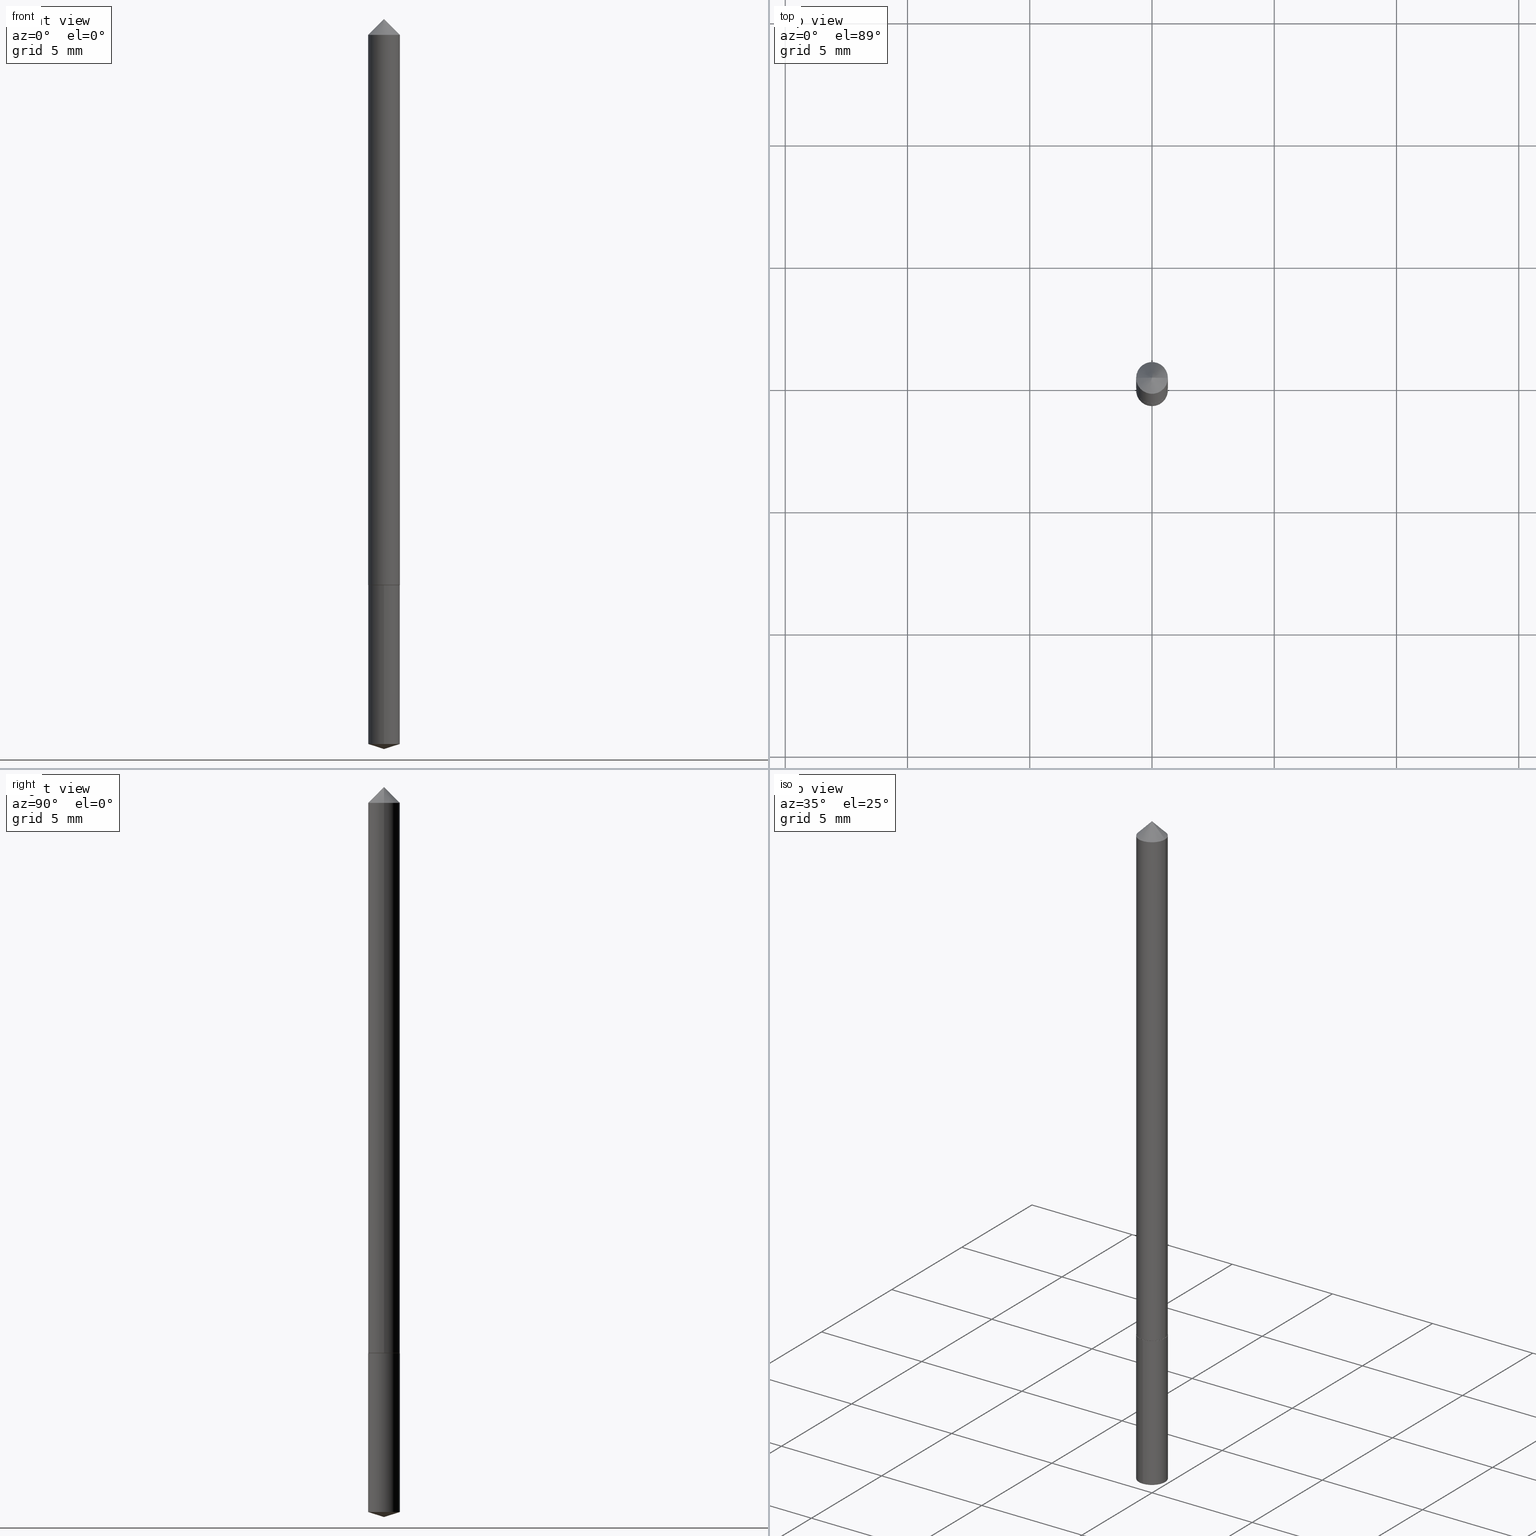
[diagram: canonical four-view strip — front | top / right | iso, engineering-drawing reading convention]
A machine part, canonical four-view strip (front | top / right | iso — engineering-drawing reading convention). The complete STEP part file that produces these views, byte-faithful:
ISO-10303-21;
HEADER;
FILE_DESCRIPTION (( 'STEP AP203' ),
    '1' );
FILE_NAME ('68659.STEP',
    '2024-04-23T13:26:30',
    ( '' ),
    ( '' ),
    'SwSTEP 2.0',
    'SolidWorks 2023',
    '' );
FILE_SCHEMA (( 'CONFIG_CONTROL_DESIGN' ));
ENDSEC;

DATA;
#1 = FACE_OUTER_BOUND ( 'NONE', #134, .T. ) ;
#2 = CARTESIAN_POINT ( 'NONE',  ( -0.02560000000000000817, 6.965505270991948383E-17, -0.03125000000000020123 ) ) ;
#3 = ORIENTED_EDGE ( 'NONE', *, *, #307, .T. ) ;
#4 = CARTESIAN_POINT ( 'NONE',  ( 0.02560000000000000817, -2.878726363876175249E-16, -0.03125000000000020123 ) ) ;
#5 = CARTESIAN_POINT ( 'NONE',  ( 2.243228535913626021E-29, -3.202735832120817848E-15, -0.9173000000000001153 ) ) ;
#6 = CARTESIAN_POINT ( 'NONE',  ( 2.243228535913626021E-29, -3.202735832120817848E-15, -0.9173000000000001153 ) ) ;
#7 = CONICAL_SURFACE ( 'NONE', #126, 0.02560000000000011572, 0.7853981633974995713 ) ;
#8 = APPROVAL_DATE_TIME ( #256, #63 ) ;
#9 = LOCAL_TIME ( 9, 26, 30.00000000000000000, #293 ) ;
#10 = CC_DESIGN_PERSON_AND_ORGANIZATION_ASSIGNMENT ( #231, #260, ( #140 ) ) ;
#11 = FACE_OUTER_BOUND ( 'NONE', #319, .T. ) ;
#12 = ORIENTED_EDGE ( 'NONE', *, *, #98, .F. ) ;
#13 = LENGTH_MEASURE_WITH_UNIT ( LENGTH_MEASURE( 0.02539999999999999897 ), #203 );
#14 = CYLINDRICAL_SURFACE ( 'NONE', #213, 0.02560000000000006368 ) ;
#15 = PERSON_AND_ORGANIZATION ( #261, #219 ) ;
#16 = EDGE_LOOP ( 'NONE', ( #30, #255, #44, #353 ) ) ;
#17 = UNCERTAINTY_MEASURE_WITH_UNIT (LENGTH_MEASURE( 1.000000000000000082E-05 ), #97, 'distance_accuracy_value', 'NONE');
#18 = EDGE_CURVE ( 'NONE', #222, #23, #73, .T. ) ;
#19 = DIRECTION ( 'NONE',  ( 0.7071067811865452413, -7.319954787623248157E-15, -0.7071067811865497932 ) ) ;
#20 = EDGE_LOOP ( 'NONE', ( #128, #200, #359, #92 ) ) ;
#21 = CARTESIAN_POINT ( 'NONE',  ( 0.02560000000000011572, -3.379753936000165015E-15, -0.9168000000000000593 ) ) ;
#22 = CARTESIAN_POINT ( 'NONE',  ( 1.818989403546143265E-16, 0.02559999999999589687, -1.173028351004698377 ) ) ;
#23 = VERTEX_POINT ( 'NONE', #22 ) ;
#24 = CARTESIAN_POINT ( 'NONE',  ( 2.888188100936074852E-29, -4.124010729998168659E-15, -1.181100000000000039 ) ) ;
#25 = CIRCLE ( 'NONE', #179, 0.02560000000000000470 ) ;
#26 = LOCAL_TIME ( 9, 26, 30.00000000000000000, #37 ) ;
#27 = VECTOR ( 'NONE', #122, 39.37007874015748143 ) ;
#28 = DIRECTION ( 'NONE',  ( -0.7071067811865837660, 7.493145998870485111E-15, 0.7071067811865112684 ) ) ;
#29 = CARTESIAN_POINT ( 'NONE',  ( 5.729040271856188653E-29, 1.789144973831807056E-15, -0.9173000000000001153 ) ) ;
#30 = ORIENTED_EDGE ( 'NONE', *, *, #163, .F. ) ;
#31 = CARTESIAN_POINT ( 'NONE',  ( 7.642090019328601786E-31, -1.091087918388490144E-16, -0.03125000000000020123 ) ) ;
#32 = PRODUCT_RELATED_PRODUCT_CATEGORY ( 'detail', '', ( #328 ) ) ;
#33 = CYLINDRICAL_SURFACE ( 'NONE', #228, 0.02560000000000000470 ) ;
#34 = EDGE_LOOP ( 'NONE', ( #106, #107, #279, #12 ) ) ;
#35 = DIRECTION ( 'NONE',  ( -2.445468806185136877E-29, 3.491481338843145188E-15, 1.000000000000000000 ) ) ;
#36 = EDGE_CURVE ( 'NONE', #129, #93, #206, .T. ) ;
#37 = COORDINATED_UNIVERSAL_TIME_OFFSET ( 5, 0, .BEHIND. ) ;
#38 = CIRCLE ( 'NONE', #362, 0.02560000000000000817 ) ;
#39 = DIRECTION ( 'NONE',  ( 6.982962677686265922E-15, 1.000000000000000000, -3.491669401403918700E-15 ) ) ;
#40 = VERTEX_POINT ( 'NONE', #21 ) ;
#41 = EDGE_CURVE ( 'NONE', #93, #258, #38, .T. ) ;
#42 = AXIS2_PLACEMENT_3D ( 'NONE', #306, #164, #190 ) ;
#43 = CARTESIAN_POINT ( 'NONE',  ( 0.000000000000000000, 0.000000000000000000, 0.000000000000000000 ) ) ;
#44 = ORIENTED_EDGE ( 'NONE', *, *, #49, .T. ) ;
#45 = SHAPE_DEFINITION_REPRESENTATION ( #194, #165 ) ;
#46 = DIRECTION ( 'NONE',  ( 1.000000000000000000, -6.982962677686276177E-15, 0.000000000000000000 ) ) ;
#47 = EDGE_LOOP ( 'NONE', ( #64, #104, #87, #77 ) ) ;
#48 = CARTESIAN_POINT ( 'NONE',  ( 0.02560000000000000817, -2.847375405818002682E-16, -0.03125000000000020123 ) ) ;
#49 = EDGE_CURVE ( 'NONE', #298, #40, #268, .T. ) ;
#50 = CARTESIAN_POINT ( 'NONE',  ( 7.642090019328601786E-31, -1.091087918388490144E-16, -0.03125000000000020123 ) ) ;
#51 = CC_DESIGN_PERSON_AND_ORGANIZATION_ASSIGNMENT ( #321, #295, ( #156 ) ) ;
#52 = DIRECTION ( 'NONE',  ( -2.445337482800842001E-29, 3.491669401403918305E-15, 1.000000000000000000 ) ) ;
#53 = CARTESIAN_POINT ( 'NONE',  ( 2.242005801510533500E-29, -3.200990091451395950E-15, -0.9168000000000000593 ) ) ;
#54 = CIRCLE ( 'NONE', #119, 0.02510000000000016385 ) ;
#55 = CARTESIAN_POINT ( 'NONE',  ( 2.242005801510533500E-29, -3.200990091451395950E-15, -0.9168000000000000593 ) ) ;
#56 = DIRECTION ( 'NONE',  ( -6.982962677686265133E-15, -1.000000000000000000, 5.335640612625512847E-15 ) ) ;
#57 = DIRECTION ( 'NONE',  ( 1.000000000000000000, -6.982962677686266711E-15, 4.876176775795935232E-29 ) ) ;
#58 = CONICAL_SURFACE ( 'NONE', #197, 124.8659371009161418, 1.265363707695894124 ) ;
#59 = CARTESIAN_POINT ( 'NONE',  ( 0.000000000000000000, 0.000000000000000000, 0.000000000000000000 ) ) ;
#60 = VERTEX_POINT ( 'NONE', #350 ) ;
#61 = APPROVAL_STATUS ( 'not_yet_approved' ) ;
#62 = CARTESIAN_POINT ( 'NONE',  ( 2.243228535913626021E-29, -3.202735832120817848E-15, -0.9173000000000001153 ) ) ;
#63 = APPROVAL ( #61, 'UNSPECIFIED' ) ;
#64 = ORIENTED_EDGE ( 'NONE', *, *, #285, .T. ) ;
#65 = ORIENTED_EDGE ( 'NONE', *, *, #307, .F. ) ;
#66 = EDGE_CURVE ( 'NONE', #108, #60, #102, .T. ) ;
#67 = CC_DESIGN_SECURITY_CLASSIFICATION ( #156, ( #227 ) ) ;
#68 = DIRECTION ( 'NONE',  ( -2.445337482800842001E-29, 3.491669401403918305E-15, 1.000000000000000000 ) ) ;
#69 = CIRCLE ( 'NONE', #239, 0.02560000000000011572 ) ;
#70 = COORDINATED_UNIVERSAL_TIME_OFFSET ( 5, 0, .BEHIND. ) ;
#71 = ADVANCED_FACE ( 'NONE', ( #132 ), #14, .T. ) ;
#72 = CARTESIAN_POINT ( 'NONE',  ( -1.787638445487459910E-16, -0.02560000000000320353, -0.9172999999999998932 ) ) ;
#73 = LINE ( 'NONE', #238, #303 ) ;
#74 = EDGE_LOOP ( 'NONE', ( #316, #3, #124 ) ) ;
#75 = DATE_TIME_ROLE ( 'classification_date' ) ;
#76 = DIRECTION ( 'NONE',  ( 6.776566513254262871E-15, 0.9537169507482294861, 0.3007057995042648479 ) ) ;
#77 = ORIENTED_EDGE ( 'NONE', *, *, #66, .F. ) ;
#78 = CC_DESIGN_DATE_AND_TIME_ASSIGNMENT ( #202, #173, ( #140 ) ) ;
#79 = CARTESIAN_POINT ( 'NONE',  ( 2.868570658040264674E-29, -4.095654690395403261E-15, -1.173028351004698155 ) ) ;
#80 = DIRECTION ( 'NONE',  ( 1.000000000000000000, -6.982962677686270655E-15, 0.000000000000000000 ) ) ;
#81 = ADVANCED_FACE ( 'NONE', ( #289 ), #58, .T. ) ;
#82 = CARTESIAN_POINT ( 'NONE',  ( 2.888188100936074852E-29, -4.124010729998168659E-15, -1.181100000000000039 ) ) ;
#83 = CIRCLE ( 'NONE', #308, 0.02560000000000011572 ) ;
#84 = DIRECTION ( 'NONE',  ( -2.445468806185136597E-29, 3.491481338843145583E-15, 1.000000000000000000 ) ) ;
#85 = EDGE_CURVE ( 'NONE', #254, #258, #152, .T. ) ;
#86 = ORIENTED_EDGE ( 'NONE', *, *, #201, .T. ) ;
#87 = ORIENTED_EDGE ( 'NONE', *, *, #325, .F. ) ;
#88 = DIRECTION ( 'NONE',  ( -2.445468806185136597E-29, 3.491481338843145583E-15, 1.000000000000000000 ) ) ;
#89 = AXIS2_PLACEMENT_3D ( 'NONE', #265, #153, #348 ) ;
#90 = CONICAL_SURFACE ( 'NONE', #257, 0.02560000000000000817, 0.7853981633974450594 ) ;
#91 = MECHANICAL_CONTEXT ( 'NONE', #154, 'mechanical' ) ;
#92 = ORIENTED_EDGE ( 'NONE', *, *, #338, .F. ) ;
#93 = VERTEX_POINT ( 'NONE', #296 ) ;
#94 = EDGE_LOOP ( 'NONE', ( #65, #310, #221 ) ) ;
#95 = DIRECTION ( 'NONE',  ( 2.445337482800841440E-29, -3.491669401403918700E-15, -1.000000000000000000 ) ) ;
#96 = CC_DESIGN_APPROVAL ( #245, ( #227 ) ) ;
#97 =( CONVERSION_BASED_UNIT ( 'INCH', #13 ) LENGTH_UNIT ( ) NAMED_UNIT ( #250 ) );
#98 = EDGE_CURVE ( 'NONE', #184, #60, #25, .T. ) ;
#99 = FACE_OUTER_BOUND ( 'NONE', #146, .T. ) ;
#100 = CALENDAR_DATE ( 2024, 23, 4 ) ;
#101 = CONICAL_SURFACE ( 'NONE', #309, 0.02560000000000011572, 0.7853981633974995713 ) ;
#102 = LINE ( 'NONE', #72, #27 ) ;
#103 = APPROVAL_STATUS ( 'not_yet_approved' ) ;
#104 = ORIENTED_EDGE ( 'NONE', *, *, #332, .T. ) ;
#105 = DIRECTION ( 'NONE',  ( -2.445468806185136597E-29, 3.491481338843145583E-15, 1.000000000000000000 ) ) ;
#106 = ORIENTED_EDGE ( 'NONE', *, *, #332, .F. ) ;
#107 = ORIENTED_EDGE ( 'NONE', *, *, #167, .T. ) ;
#108 = VERTEX_POINT ( 'NONE', #236 ) ;
#109 = CC_DESIGN_APPROVAL ( #63, ( #140 ) ) ;
#110 = DIRECTION ( 'NONE',  ( -2.445337482800842001E-29, 3.491669401403918305E-15, 1.000000000000000000 ) ) ;
#111 = CARTESIAN_POINT ( 'NONE',  ( 2.242005801510533500E-29, -3.200990091451395950E-15, -0.9168000000000000593 ) ) ;
#112 = CC_DESIGN_PERSON_AND_ORGANIZATION_ASSIGNMENT ( #242, #270, ( #227 ) ) ;
#113 = CARTESIAN_POINT ( 'NONE',  ( 2.242005801510533500E-29, -3.200990091451395950E-15, -0.9168000000000000593 ) ) ;
#114 = ORIENTED_EDGE ( 'NONE', *, *, #224, .F. ) ;
#115 = FACE_OUTER_BOUND ( 'NONE', #20, .T. ) ;
#116 = FACE_OUTER_BOUND ( 'NONE', #74, .T. ) ;
#117 = CC_DESIGN_PERSON_AND_ORGANIZATION_ASSIGNMENT ( #125, #237, ( #227 ) ) ;
#118 = DIRECTION ( 'NONE',  ( -2.445337482800842001E-29, 3.491669401403918700E-15, 1.000000000000000000 ) ) ;
#119 = AXIS2_PLACEMENT_3D ( 'NONE', #356, #105, #46 ) ;
#120 = COORDINATED_UNIVERSAL_TIME_OFFSET ( 5, 0, .BEHIND. ) ;
#121 = EDGE_CURVE ( 'NONE', #258, #93, #263, .T. ) ;
#122 = DIRECTION ( 'NONE',  ( -2.445337482800842001E-29, 3.491669401403918700E-15, 1.000000000000000000 ) ) ;
#123 = APPROVAL ( #103, 'UNSPECIFIED' ) ;
#124 = ORIENTED_EDGE ( 'NONE', *, *, #167, .F. ) ;
#125 = PERSON_AND_ORGANIZATION ( #261, #219 ) ;
#126 = AXIS2_PLACEMENT_3D ( 'NONE', #53, #274, #248 ) ;
#127 = APPROVAL_PERSON_ORGANIZATION ( #150, #63, #314 ) ;
#128 = ORIENTED_EDGE ( 'NONE', *, *, #208, .T. ) ;
#129 = VERTEX_POINT ( 'NONE', #243 ) ;
#130 = CLOSED_SHELL ( 'NONE', ( #158, #269, #313, #317, #232, #71, #225 ) ) ;
#131 = APPROVAL_DATE_TIME ( #352, #245 ) ;
#132 = FACE_OUTER_BOUND ( 'NONE', #212, .T. ) ;
#133 = DIRECTION ( 'NONE',  ( 0.7071067811865837660, -2.468850131082636503E-15, 0.7071067811865112684 ) ) ;
#134 = EDGE_LOOP ( 'NONE', ( #114, #214 ) ) ;
#135 = DIRECTION ( 'NONE',  ( -6.659769872151637611E-15, -0.9537169507482274877, 0.3007057995042715093 ) ) ;
#136 = CC_DESIGN_APPROVAL ( #123, ( #156 ) ) ;
#137 = EDGE_CURVE ( 'NONE', #358, #298, #54, .T. ) ;
#138 = AXIS2_PLACEMENT_3D ( 'NONE', #337, #334, #168 ) ;
#139 = DIRECTION ( 'NONE',  ( -2.445468806185136597E-29, 3.491481338843145583E-15, 1.000000000000000000 ) ) ;
#140 = PRODUCT_DEFINITION ( 'UNKNOWN', '', #227, #235 ) ;
#141 = DIRECTION ( 'NONE',  ( -2.438088387897960049E-29, 3.491481338843145188E-15, 1.000000000000000000 ) ) ;
#142 = ORIENTED_EDGE ( 'NONE', *, *, #121, .T. ) ;
#143 = FACE_OUTER_BOUND ( 'NONE', #16, .T. ) ;
#144 = APPROVAL_PERSON_ORGANIZATION ( #344, #245, #326 ) ;
#145 = CARTESIAN_POINT ( 'NONE',  ( 1.818989403546144004E-16, 0.02559999999999680240, -0.9173000000000002263 ) ) ;
#146 = EDGE_LOOP ( 'NONE', ( #211, #299, #142 ) ) ;
#147 = LOCAL_TIME ( 9, 26, 30.00000000000000000, #70 ) ;
#148 = VECTOR ( 'NONE', #271, 39.37007874015748143 ) ;
#149 = DIRECTION ( 'NONE',  ( 0.000000000000000000, 0.000000000000000000, 1.000000000000000000 ) ) ;
#150 = PERSON_AND_ORGANIZATION ( #261, #219 ) ;
#151 = VECTOR ( 'NONE', #133, 39.37007874015748143 ) ;
#152 = LINE ( 'NONE', #48, #247 ) ;
#153 = DIRECTION ( 'NONE',  ( -2.445468806185136597E-29, 3.491481338843145583E-15, 1.000000000000000000 ) ) ;
#154 = APPLICATION_CONTEXT ( 'configuration controlled 3d designs of mechanical parts and assemblies' ) ;
#155 = CARTESIAN_POINT ( 'NONE',  ( -0.02560000000000006368, 1.818989403545861000E-16, -1.259247383105259117E-30 ) ) ;
#156 = SECURITY_CLASSIFICATION ( '', '', #349 ) ;
#157 = CARTESIAN_POINT ( 'NONE',  ( 2.243228535913626021E-29, -3.202735832120817848E-15, -0.9173000000000001153 ) ) ;
#158 = ADVANCED_FACE ( 'NONE', ( #99 ), #264, .T. ) ;
#159 = EDGE_LOOP ( 'NONE', ( #176, #343, #229 ) ) ;
#160 = ADVANCED_FACE ( 'NONE', ( #333 ), #33, .T. ) ;
#161 = CARTESIAN_POINT ( 'NONE',  ( 0.02510000000000016385, -3.378008195330743906E-15, -0.9172999999999998932 ) ) ;
#162 = DIRECTION ( 'NONE',  ( -6.982962677686265133E-15, -1.000000000000000000, 5.335640612625512847E-15 ) ) ;
#163 = EDGE_CURVE ( 'NONE', #358, #129, #249, .T. ) ;
#164 = DIRECTION ( 'NONE',  ( -2.445337482800842001E-29, 3.491669401403918305E-15, 1.000000000000000000 ) ) ;
#165 = ADVANCED_BREP_SHAPE_REPRESENTATION ( '68659', ( #345, #220, #174 ), #215 ) ;
#166 = DIRECTION ( 'NONE',  ( -0.7071067811865452413, 2.468850131082233000E-15, -0.7071067811865497932 ) ) ;
#167 = EDGE_CURVE ( 'NONE', #23, #108, #340, .T. ) ;
#168 = DIRECTION ( 'NONE',  ( -6.982962677686265133E-15, -1.000000000000000000, 5.335640612625512847E-15 ) ) ;
#169 = AXIS2_PLACEMENT_3D ( 'NONE', #50, #241, #267 ) ;
#170 = AXIS2_PLACEMENT_3D ( 'NONE', #62, #95, #39 ) ;
#171 = LINE ( 'NONE', #315, #275 ) ;
#172 = APPLICATION_PROTOCOL_DEFINITION ( 'international standard', 'config_control_design', 1994, #282 ) ;
#173 = DATE_TIME_ROLE ( 'creation_date' ) ;
#174 = AXIS2_PLACEMENT_3D ( 'NONE', #59, #149, #280 ) ;
#175 = CARTESIAN_POINT ( 'NONE',  ( -0.02510000000000016385, -3.021740378270919843E-15, -0.9172999999999998932 ) ) ;
#176 = ORIENTED_EDGE ( 'NONE', *, *, #85, .F. ) ;
#177 = CC_DESIGN_PERSON_AND_ORGANIZATION_ASSIGNMENT ( #281, #311, ( #328 ) ) ;
#178 = CARTESIAN_POINT ( 'NONE',  ( 7.642090019328601786E-31, -1.091087918388490144E-16, -0.03125000000000020123 ) ) ;
#179 = AXIS2_PLACEMENT_3D ( 'NONE', #157, #68, #180 ) ;
#180 = DIRECTION ( 'NONE',  ( -6.982962677686265133E-15, -1.000000000000000000, 5.335640612625512847E-15 ) ) ;
#181 = APPROVAL_DATE_TIME ( #186, #123 ) ;
#182 = DIRECTION ( 'NONE',  ( -6.982962677686265922E-15, -1.000000000000000000, 3.500519750498674455E-15 ) ) ;
#183 = DIRECTION ( 'NONE',  ( -2.445468806185136597E-29, 3.491481338843145583E-15, 1.000000000000000000 ) ) ;
#184 = VERTEX_POINT ( 'NONE', #145 ) ;
#185 = ADVANCED_FACE ( 'NONE', ( #336 ), #278, .T. ) ;
#186 = DATE_AND_TIME ( #354, #147 ) ;
#187 = CARTESIAN_POINT ( 'NONE',  ( -9.338482068025116463E-28, 1.333434610476596356E-13, 38.18897874015748073 ) ) ;
#188 = DIRECTION ( 'NONE',  ( -2.445468806185136597E-29, 3.491481338843145583E-15, 1.000000000000000000 ) ) ;
#189 = ORIENTED_EDGE ( 'NONE', *, *, #338, .T. ) ;
#190 = DIRECTION ( 'NONE',  ( -6.982962677686265922E-15, -1.000000000000000000, 3.500519750498674455E-15 ) ) ;
#191 = DIRECTION ( 'NONE',  ( 1.000000000000000000, -6.982962677686276177E-15, 0.000000000000000000 ) ) ;
#192 = AXIS2_PLACEMENT_3D ( 'NONE', #305, #88, #191 ) ;
#193 = DIRECTION ( 'NONE',  ( 1.000000000000000000, -6.982962677686270655E-15, 0.000000000000000000 ) ) ;
#194 = PRODUCT_DEFINITION_SHAPE ( 'NONE', 'NONE',  #140 ) ;
#195 = DIRECTION ( 'NONE',  ( -1.000000000000000000, 6.982962677686267499E-15, 0.000000000000000000 ) ) ;
#196 = VECTOR ( 'NONE', #28, 39.37007874015748143 ) ;
#197 = AXIS2_PLACEMENT_3D ( 'NONE', #187, #322, #182 ) ;
#198 = EDGE_CURVE ( 'NONE', #254, #93, #304, .T. ) ;
#199 = DIRECTION ( 'NONE',  ( 1.000000000000000000, -6.982962677686265922E-15, 4.876176775795935793E-29 ) ) ;
#200 = ORIENTED_EDGE ( 'NONE', *, *, #36, .T. ) ;
#201 = EDGE_CURVE ( 'NONE', #129, #40, #83, .T. ) ;
#202 = DATE_AND_TIME ( #230, #361 ) ;
#203 =( LENGTH_UNIT ( ) NAMED_UNIT ( * ) SI_UNIT ( $, .METRE. ) );
#204 =( NAMED_UNIT ( * ) SI_UNIT ( $, .STERADIAN. ) SOLID_ANGLE_UNIT ( ) );
#205 = CALENDAR_DATE ( 2024, 23, 4 ) ;
#206 = LINE ( 'NONE', #155, #148 ) ;
#207 = COORDINATED_UNIVERSAL_TIME_OFFSET ( 5, 0, .BEHIND. ) ;
#208 = EDGE_CURVE ( 'NONE', #40, #129, #69, .T. ) ;
#209 = DIRECTION ( 'NONE',  ( 1.000000000000000000, -6.982962677686266711E-15, 4.876176775795935232E-29 ) ) ;
#210 = ORIENTED_EDGE ( 'NONE', *, *, #41, .F. ) ;
#211 = ORIENTED_EDGE ( 'NONE', *, *, #198, .F. ) ;
#212 = EDGE_LOOP ( 'NONE', ( #286, #86, #189, #210 ) ) ;
#213 = AXIS2_PLACEMENT_3D ( 'NONE', #43, #357, #209 ) ;
#214 = ORIENTED_EDGE ( 'NONE', *, *, #137, .F. ) ;
#215 =( GEOMETRIC_REPRESENTATION_CONTEXT ( 3 ) GLOBAL_UNCERTAINTY_ASSIGNED_CONTEXT ( ( #17 ) ) GLOBAL_UNIT_ASSIGNED_CONTEXT ( ( #97, #339, #204 ) ) REPRESENTATION_CONTEXT ( 'NONE', 'WORKASPACE' ) );
#216 = CARTESIAN_POINT ( 'NONE',  ( 2.243228535913626021E-29, -3.202735832120817848E-15, -0.9173000000000001153 ) ) ;
#217 = PLANE ( 'NONE',  #342 ) ;
#218 = DIRECTION ( 'NONE',  ( 1.000000000000000000, -6.982962677686270655E-15, 0.000000000000000000 ) ) ;
#219 = ORGANIZATION ( 'UNSPECIFIED', 'UNSPECIFIED', '' ) ;
#220 = MANIFOLD_SOLID_BREP ( 'Body-Move/Copy2[2]', #130 ) ;
#221 = ORIENTED_EDGE ( 'NONE', *, *, #285, .F. ) ;
#222 = VERTEX_POINT ( 'NONE', #82 ) ;
#223 = CARTESIAN_POINT ( 'NONE',  ( 0.000000000000000000, 0.000000000000000000, 0.000000000000000000 ) ) ;
#224 = EDGE_CURVE ( 'NONE', #298, #358, #284, .T. ) ;
#225 = ADVANCED_FACE ( 'NONE', ( #277 ), #90, .T. ) ;
#226 = CONICAL_SURFACE ( 'NONE', #42, 124.8659371009161418, 1.265363707695894124 ) ;
#227 = PRODUCT_DEFINITION_FORMATION_WITH_SPECIFIED_SOURCE ( 'ANY', '', #328, .NOT_KNOWN. ) ;
#228 = AXIS2_PLACEMENT_3D ( 'NONE', #5, #110, #56 ) ;
#229 = ORIENTED_EDGE ( 'NONE', *, *, #41, .T. ) ;
#230 = CALENDAR_DATE ( 2024, 23, 4 ) ;
#231 = PERSON_AND_ORGANIZATION ( #261, #219 ) ;
#232 = ADVANCED_FACE ( 'NONE', ( #143 ), #101, .T. ) ;
#233 = LINE ( 'NONE', #287, #330 ) ;
#234 = ORIENTED_EDGE ( 'NONE', *, *, #98, .T. ) ;
#235 = DESIGN_CONTEXT ( 'detailed design', #282, 'design' ) ;
#236 = CARTESIAN_POINT ( 'NONE',  ( -1.787638445487397048E-16, -0.02560000000000409517, -1.173028351004697933 ) ) ;
#237 = PERSON_AND_ORGANIZATION_ROLE ( 'design_supplier' ) ;
#238 = CARTESIAN_POINT ( 'NONE',  ( 2.888431139452486497E-29, -4.123665710424174645E-15, -1.181100000000000039 ) ) ;
#239 = AXIS2_PLACEMENT_3D ( 'NONE', #55, #84, #80 ) ;
#240 = APPROVAL_PERSON_ORGANIZATION ( #15, #123, #318 ) ;
#241 = DIRECTION ( 'NONE',  ( 2.445468806185136597E-29, -3.491481338843145583E-15, -1.000000000000000000 ) ) ;
#242 = PERSON_AND_ORGANIZATION ( #261, #219 ) ;
#243 = CARTESIAN_POINT ( 'NONE',  ( -0.02560000000000011572, -3.019091151096809431E-15, -0.9168000000000000593 ) ) ;
#244 = ORIENTED_EDGE ( 'NONE', *, *, #325, .T. ) ;
#245 = APPROVAL ( #283, 'UNSPECIFIED' ) ;
#246 = DIRECTION ( 'NONE',  ( -2.445337482800842001E-29, 3.491669401403918305E-15, 1.000000000000000000 ) ) ;
#247 = VECTOR ( 'NONE', #19, 39.37007874015748143 ) ;
#248 = DIRECTION ( 'NONE',  ( 1.000000000000000000, -6.982962677686270655E-15, 0.000000000000000000 ) ) ;
#249 = LINE ( 'NONE', #273, #196 ) ;
#250 = DIMENSIONAL_EXPONENTS ( 1.000000000000000000, 0.000000000000000000, 0.000000000000000000, 0.000000000000000000, 0.000000000000000000, 0.000000000000000000, 0.000000000000000000 ) ;
#251 = ORIENTED_EDGE ( 'NONE', *, *, #208, .F. ) ;
#252 = CARTESIAN_POINT ( 'NONE',  ( 1.381689875494609842E-31, -1.972686956446388396E-17, -0.005650000000000031733 ) ) ;
#253 = DIRECTION ( 'NONE',  ( 2.445468806185136597E-29, -3.491481338843145583E-15, -1.000000000000000000 ) ) ;
#254 = VERTEX_POINT ( 'NONE', #252 ) ;
#255 = ORIENTED_EDGE ( 'NONE', *, *, #137, .T. ) ;
#256 = DATE_AND_TIME ( #259, #26 ) ;
#257 = AXIS2_PLACEMENT_3D ( 'NONE', #31, #253, #195 ) ;
#258 = VERTEX_POINT ( 'NONE', #4 ) ;
#259 = CALENDAR_DATE ( 2024, 23, 4 ) ;
#260 = PERSON_AND_ORGANIZATION_ROLE ( 'creator' ) ;
#261 = PERSON ( 'UNSPECIFIED', 'UNSPECIFIED', 'UNSPECIFIED', ('UNSPECIFIED'), ('UNSPECIFIED'), ('UNSPECIFIED') ) ;
#262 = PLANE ( 'NONE',  #170 ) ;
#263 = CIRCLE ( 'NONE', #89, 0.02560000000000000817 ) ;
#264 = CONICAL_SURFACE ( 'NONE', #169, 0.02560000000000000817, 0.7853981633974450594 ) ;
#265 = CARTESIAN_POINT ( 'NONE',  ( 7.642090019328601786E-31, -1.091087918388490144E-16, -0.03125000000000020123 ) ) ;
#266 = ADVANCED_FACE ( 'NONE', ( #116 ), #226, .T. ) ;
#267 = DIRECTION ( 'NONE',  ( -1.000000000000000000, 6.982962677686267499E-15, 0.000000000000000000 ) ) ;
#268 = LINE ( 'NONE', #297, #151 ) ;
#269 = ADVANCED_FACE ( 'NONE', ( #115 ), #331, .T. ) ;
#270 = PERSON_AND_ORGANIZATION_ROLE ( 'creator' ) ;
#271 = DIRECTION ( 'NONE',  ( -2.445468806185136877E-29, 3.491481338843145188E-15, 1.000000000000000000 ) ) ;
#272 = ORIENTED_EDGE ( 'NONE', *, *, #163, .T. ) ;
#273 = CARTESIAN_POINT ( 'NONE',  ( -0.02560000000000011572, -3.019091151096809431E-15, -0.9168000000000000593 ) ) ;
#274 = DIRECTION ( 'NONE',  ( -2.445468806185136597E-29, 3.491481338843145583E-15, 1.000000000000000000 ) ) ;
#275 = VECTOR ( 'NONE', #35, 39.37007874015748143 ) ;
#276 = LINE ( 'NONE', #24, #320 ) ;
#277 = FACE_OUTER_BOUND ( 'NONE', #159, .T. ) ;
#278 = CYLINDRICAL_SURFACE ( 'NONE', #351, 0.02560000000000000470 ) ;
#279 = ORIENTED_EDGE ( 'NONE', *, *, #66, .T. ) ;
#280 = DIRECTION ( 'NONE',  ( 1.000000000000000000, 0.000000000000000000, 0.000000000000000000 ) ) ;
#281 = PERSON_AND_ORGANIZATION ( #261, #219 ) ;
#282 = APPLICATION_CONTEXT ( 'configuration controlled 3d designs of mechanical parts and assemblies' ) ;
#283 = APPROVAL_STATUS ( 'not_yet_approved' ) ;
#284 = CIRCLE ( 'NONE', #192, 0.02510000000000016385 ) ;
#285 = EDGE_CURVE ( 'NONE', #108, #23, #363, .T. ) ;
#286 = ORIENTED_EDGE ( 'NONE', *, *, #36, .F. ) ;
#287 = CARTESIAN_POINT ( 'NONE',  ( 1.818989403546080895E-16, 0.02559999999999680240, -0.9173000000000002263 ) ) ;
#288 = DATE_AND_TIME ( #100, #291 ) ;
#289 = FACE_OUTER_BOUND ( 'NONE', #94, .T. ) ;
#290 = VECTOR ( 'NONE', #166, 39.37007874015748143 ) ;
#291 = LOCAL_TIME ( 9, 26, 30.00000000000000000, #207 ) ;
#292 = AXIS2_PLACEMENT_3D ( 'NONE', #79, #52, #301 ) ;
#293 = COORDINATED_UNIVERSAL_TIME_OFFSET ( 5, 0, .BEHIND. ) ;
#294 = ORIENTED_EDGE ( 'NONE', *, *, #49, .F. ) ;
#295 = PERSON_AND_ORGANIZATION_ROLE ( 'classification_officer' ) ;
#296 = CARTESIAN_POINT ( 'NONE',  ( -0.02560000000000000817, -1.473150501290534626E-15, -0.03125000000000020123 ) ) ;
#297 = CARTESIAN_POINT ( 'NONE',  ( 0.02560000000000011572, -3.379753936000165015E-15, -0.9168000000000000593 ) ) ;
#298 = VERTEX_POINT ( 'NONE', #161 ) ;
#299 = ORIENTED_EDGE ( 'NONE', *, *, #85, .T. ) ;
#300 = DIRECTION ( 'NONE',  ( -2.445468806185136597E-29, 3.491481338843145583E-15, 1.000000000000000000 ) ) ;
#301 = DIRECTION ( 'NONE',  ( -6.982962677686265133E-15, -1.000000000000000000, 5.335640612625512847E-15 ) ) ;
#302 = CIRCLE ( 'NONE', #335, 0.02560000000000000470 ) ;
#303 = VECTOR ( 'NONE', #76, 39.37007874015748143 ) ;
#304 = LINE ( 'NONE', #2, #290 ) ;
#305 = CARTESIAN_POINT ( 'NONE',  ( 2.243228535913625741E-29, -3.202735832120817059E-15, -0.9172999999999998932 ) ) ;
#306 = CARTESIAN_POINT ( 'NONE',  ( -9.338482068025116463E-28, 1.333434610476596356E-13, 38.18897874015748073 ) ) ;
#307 = EDGE_CURVE ( 'NONE', #222, #108, #276, .T. ) ;
#308 = AXIS2_PLACEMENT_3D ( 'NONE', #113, #188, #193 ) ;
#309 = AXIS2_PLACEMENT_3D ( 'NONE', #111, #139, #218 ) ;
#310 = ORIENTED_EDGE ( 'NONE', *, *, #18, .T. ) ;
#311 = PERSON_AND_ORGANIZATION_ROLE ( 'design_owner' ) ;
#312 = DIRECTION ( 'NONE',  ( -6.982962677686265133E-15, -1.000000000000000000, 5.335640612625512847E-15 ) ) ;
#313 = ADVANCED_FACE ( 'NONE', ( #364 ), #7, .T. ) ;
#314 = APPROVAL_ROLE ( '' ) ;
#315 = CARTESIAN_POINT ( 'NONE',  ( 0.02560000000000006368, -1.787638445487688680E-16, 1.248301254603762494E-30 ) ) ;
#316 = ORIENTED_EDGE ( 'NONE', *, *, #18, .F. ) ;
#317 = ADVANCED_FACE ( 'NONE', ( #1 ), #217, .F. ) ;
#318 = APPROVAL_ROLE ( '' ) ;
#319 = EDGE_LOOP ( 'NONE', ( #244, #234 ) ) ;
#320 = VECTOR ( 'NONE', #135, 39.37007874015748143 ) ;
#321 = PERSON_AND_ORGANIZATION ( #261, #219 ) ;
#322 = DIRECTION ( 'NONE',  ( -2.445337482800842001E-29, 3.491669401403918305E-15, 1.000000000000000000 ) ) ;
#323 = EDGE_LOOP ( 'NONE', ( #324, #272, #251, #294 ) ) ;
#324 = ORIENTED_EDGE ( 'NONE', *, *, #224, .T. ) ;
#325 = EDGE_CURVE ( 'NONE', #60, #184, #302, .T. ) ;
#326 = APPROVAL_ROLE ( '' ) ;
#327 = DIRECTION ( 'NONE',  ( 1.000000000000000000, -6.982962677686267499E-15, 0.000000000000000000 ) ) ;
#328 = PRODUCT ( '68659', '68659', '', ( #91 ) ) ;
#329 = CLOSED_SHELL ( 'NONE', ( #185, #81, #266, #160, #355 ) ) ;
#330 = VECTOR ( 'NONE', #118, 39.37007874015748143 ) ;
#331 = CYLINDRICAL_SURFACE ( 'NONE', #360, 0.02560000000000006368 ) ;
#332 = EDGE_CURVE ( 'NONE', #23, #184, #233, .T. ) ;
#333 = FACE_OUTER_BOUND ( 'NONE', #34, .T. ) ;
#334 = DIRECTION ( 'NONE',  ( -2.445337482800842001E-29, 3.491669401403918305E-15, 1.000000000000000000 ) ) ;
#335 = AXIS2_PLACEMENT_3D ( 'NONE', #6, #346, #312 ) ;
#336 = FACE_OUTER_BOUND ( 'NONE', #47, .T. ) ;
#337 = CARTESIAN_POINT ( 'NONE',  ( 2.868570658040264674E-29, -4.095654690395403261E-15, -1.173028351004698155 ) ) ;
#338 = EDGE_CURVE ( 'NONE', #40, #258, #171, .T. ) ;
#339 =( NAMED_UNIT ( * ) PLANE_ANGLE_UNIT ( ) SI_UNIT ( $, .RADIAN. ) );
#340 = CIRCLE ( 'NONE', #138, 0.02560000000000000470 ) ;
#341 = APPLICATION_PROTOCOL_DEFINITION ( 'international standard', 'config_control_design', 1994, #154 ) ;
#342 = AXIS2_PLACEMENT_3D ( 'NONE', #29, #141, #199 ) ;
#343 = ORIENTED_EDGE ( 'NONE', *, *, #198, .T. ) ;
#344 = PERSON_AND_ORGANIZATION ( #261, #219 ) ;
#345 = MANIFOLD_SOLID_BREP ( 'Body-Move/Copy2[1]', #329 ) ;
#346 = DIRECTION ( 'NONE',  ( -2.445337482800842001E-29, 3.491669401403918305E-15, 1.000000000000000000 ) ) ;
#347 = CC_DESIGN_DATE_AND_TIME_ASSIGNMENT ( #288, #75, ( #156 ) ) ;
#348 = DIRECTION ( 'NONE',  ( 1.000000000000000000, -6.982962677686267499E-15, 0.000000000000000000 ) ) ;
#349 = SECURITY_CLASSIFICATION_LEVEL ( 'unclassified' ) ;
#350 = CARTESIAN_POINT ( 'NONE',  ( -1.787638445487459910E-16, -0.02560000000000320353, -0.9172999999999998932 ) ) ;
#351 = AXIS2_PLACEMENT_3D ( 'NONE', #216, #246, #162 ) ;
#352 = DATE_AND_TIME ( #205, #9 ) ;
#353 = ORIENTED_EDGE ( 'NONE', *, *, #201, .F. ) ;
#354 = CALENDAR_DATE ( 2024, 23, 4 ) ;
#355 = ADVANCED_FACE ( 'NONE', ( #11 ), #262, .F. ) ;
#356 = CARTESIAN_POINT ( 'NONE',  ( 2.243228535913625741E-29, -3.202735832120817059E-15, -0.9172999999999998932 ) ) ;
#357 = DIRECTION ( 'NONE',  ( -2.445468806185136597E-29, 3.491481338843145583E-15, 1.000000000000000000 ) ) ;
#358 = VERTEX_POINT ( 'NONE', #175 ) ;
#359 = ORIENTED_EDGE ( 'NONE', *, *, #121, .F. ) ;
#360 = AXIS2_PLACEMENT_3D ( 'NONE', #223, #300, #57 ) ;
#361 = LOCAL_TIME ( 9, 26, 30.00000000000000000, #120 ) ;
#362 = AXIS2_PLACEMENT_3D ( 'NONE', #178, #183, #327 ) ;
#363 = CIRCLE ( 'NONE', #292, 0.02560000000000000470 ) ;
#364 = FACE_OUTER_BOUND ( 'NONE', #323, .T. ) ;
ENDSEC;
END-ISO-10303-21;
